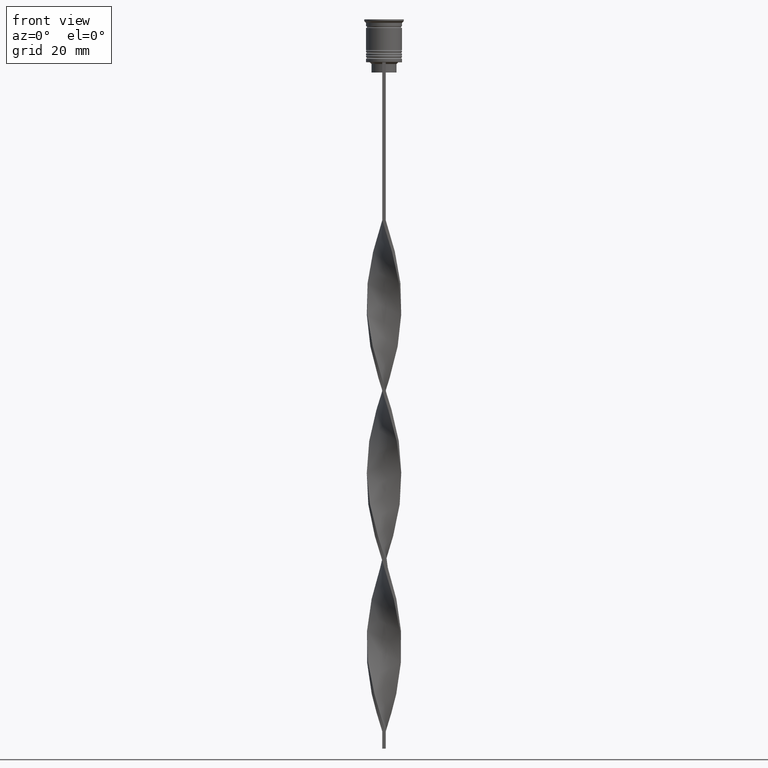
[diagram: clean part render]
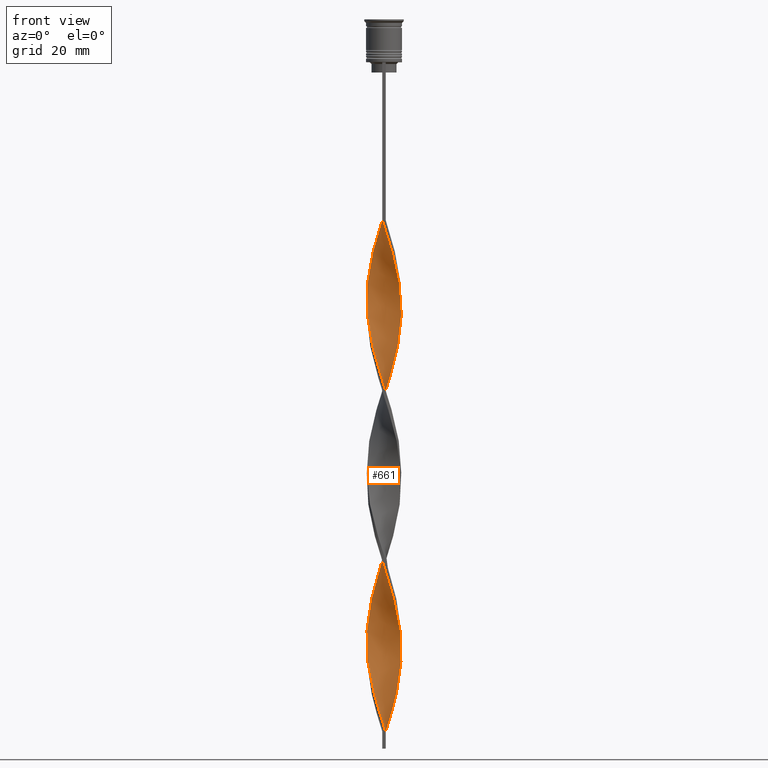
[diagram: same view with one face highlighted and labeled with its STEP entity id]
A machine part, front view. The second image highlights one B-rep face of the part: STEP entity #661.
In plain terms, the highlighted face is a freeform B-spline surface patch.
Its self-contained STEP definition (entity closure, byte-faithful):
#3 = CARTESIAN_POINT ( 'NONE',  ( 3.426799919866742705, -3.704571868705845095, -118.3921568627451109 ) ) ;
#10 = CARTESIAN_POINT ( 'NONE',  ( 2.687738844636429647, -4.271167325712944773, -115.4705882352941018 ) ) ;
#16 = CARTESIAN_POINT ( 'NONE',  ( 3.057269382251585288, 3.987869597209392936, -99.40196078431372939 ) ) ;
#30 = CARTESIAN_POINT ( 'NONE',  ( 1.339972216233587421, 4.842981980115355967, -151.9901960784313530 ) ) ;
#31 =( BOUNDED_SURFACE ( )  B_SPLINE_SURFACE ( 1, 2, ( 
 ( #3238, #3155, #3502, #2878, #2326, #1101, #1719, #856, #565, #295, #3763, #238, #816, #1762, #3743, #3483, #2033, #509, #2279, #1679, #2952, #1406, #2911, #588, #3213, #1122, #3786, #2934, #16, #275, #3523, #1448, #1184, #2636, #3805, #2345, #529, #1468, #2371, #3544, #3462, #1994, #3178, #1699, #2894, #2594, #257, #2304, #835, #2016, #3195, #1430, #2617, #3326, #647, #3010, #1522, #1221, #3273, #2711, #947, #3626, #2751, #366, #2075, #1489, #607, #1206, #2971, #2677, #126, #561, #2323, #2949, #2653, #1465, #2576, #2052, #3480, #832, #892, #3499, #3803, #3740, #1739, #1097, #2275, #2929, #466, #1363, #102, #1611, #2762, #731, #117, #2508, #3673, #1034, #3688, #462, #2463, #1631, #1338 ),
 ( #1053, #1941, #2312, #2565, #1687, #3774, #535, #3730, #1412, #841, #2020, #2839, #1357, #783, #2863, #1087, #3446, #801, #1470, #3597, #56, #1823, #277, #927, #1223, #2348, #3012, #949, #2091, #3311, #1840, #2059, #590, #1764, #609, #1187, #1492, #2077, #1783, #3254, #2331, #3, #2355, #1771, #3017, #2661, #377, #2718, #3262, #2740, #955, #2444, #3335, #2685, #1513, #1194, #2978, #3565, #2460, #400, #1569, #1279, #2352, #1473, #3747, #3771, #2287, #533, #1723, #1806, #2637, #3441, #1449, #2346, #3239, #1374, #367, #1257, #296, #3252, #1801, #2695, #1746, #2955, #1701, #2307, #2060, #3789, #879, #2936, #1721, #1103, #3485, #2619, #837, #2639, #591, #1765, #2349, #1682, #2282, #1111, #1023 ) ),
 .UNSPECIFIED., .F., .F., .F. ) 
 B_SPLINE_SURFACE_WITH_KNOTS ( ( 2, 2 ),
 ( 3, 2, 2, 2, 2, 2, 2, 2, 2, 2, 2, 2, 2, 2, 2, 2, 2, 2, 2, 2, 2, 2, 2, 2, 2, 2, 2, 2, 2, 2, 2, 2, 2, 2, 2, 2, 2, 2, 2, 2, 2, 2, 2, 2, 2, 2, 2, 2, 2, 2, 2, 3 ),
 ( 0.000000000000000000, 1.000000000000000000 ),
 ( 0.000000000000000000, 0.01470588235294117627, 0.02941176470588235253, 0.04411764705882353227, 0.05882352941176470507, 0.07352941176470588480, 0.08823529411764706454, 0.1029411764705882304, 0.1176470588235294101, 0.1323529411764705899, 0.1470588235294117696, 0.1617647058823529493, 0.1764705882352941291, 0.1911764705882352811, 0.2058823529411764608, 0.2205882352941176405, 0.2352941176470588203, 0.2500000000000000000, 0.2647058823529411797, 0.2794117647058823595, 0.2941176470588235392, 0.3088235294117647189, 0.3235294117647058987, 0.3382352941176470784, 0.3529411764705882582, 0.3676470588235294379, 0.3823529411764705621, 0.3970588235294117418, 0.4117647058823529216, 0.4264705882352941013, 0.4411764705882352811, 0.4558823529411764608, 0.4705882352941176405, 0.4852941176470588203, 0.5000000000000000000, 0.5147058823529411242, 0.5294117647058823595, 0.5441176470588234837, 0.5588235294117647189, 0.5735294117647058432, 0.5882352941176470784, 0.6029411764705882026, 0.6176470588235294379, 0.6323529411764705621, 0.6470588235294117974, 0.6617647058823529216, 0.6764705882352941568, 0.6911764705882352811, 0.7058823529411765163, 0.7205882352941176405, 0.7352941176470588758, 0.7500000000000000000 ),
 .UNSPECIFIED. ) 
 GEOMETRIC_REPRESENTATION_ITEM ( )  RATIONAL_B_SPLINE_SURFACE ( (
 ( 1.000000000000000000, 0.9957341762950344677, 1.000000000000000000, 0.9957341762950344677, 1.000000000000000000, 0.9957341762950344677, 1.000000000000000000, 0.9957341762950344677, 1.000000000000000000, 0.9957341762950344677, 1.000000000000000000, 0.9957341762950344677, 1.000000000000000000, 0.9957341762950344677, 1.000000000000000000, 0.9957341762950344677, 1.000000000000000000, 0.9957341762950344677, 1.000000000000000000, 0.9957341762950344677, 1.000000000000000000, 0.9957341762950344677, 1.000000000000000000, 0.9957341762950344677, 1.000000000000000000, 0.9957341762950344677, 1.000000000000000000, 0.9957341762950344677, 1.000000000000000000, 0.9957341762950344677, 1.000000000000000000, 0.9957341762950344677, 1.000000000000000000, 0.9957341762950344677, 1.000000000000000000, 0.9957341762950344677, 1.000000000000000000, 0.9957341762950344677, 1.000000000000000000, 0.9957341762950344677, 1.000000000000000000, 0.9957341762950344677, 1.000000000000000000, 0.9957341762950344677, 1.000000000000000000, 0.9957341762950344677, 1.000000000000000000, 0.9957341762950344677, 1.000000000000000000, 0.9957341762950344677, 1.000000000000000000, 0.9957341762950344677, 1.000000000000000000, 0.9957341762950344677, 1.000000000000000000, 0.9957341762950344677, 1.000000000000000000, 0.9957341762950344677, 1.000000000000000000, 0.9957341762950344677, 1.000000000000000000, 0.9957341762950344677, 1.000000000000000000, 0.9957341762950344677, 1.000000000000000000, 0.9957341762950344677, 1.000000000000000000, 0.9957341762950344677, 1.000000000000000000, 0.9957341762950344677, 1.000000000000000000, 0.9957341762950344677, 1.000000000000000000, 0.9957341762950344677, 1.000000000000000000, 0.9957341762950344677, 1.000000000000000000, 0.9957341762950344677, 1.000000000000000000, 0.9957341762950344677, 1.000000000000000000, 0.9957341762950344677, 1.000000000000000000, 0.9957341762950344677, 1.000000000000000000, 0.9957341762950344677, 1.000000000000000000, 0.9957341762950344677, 1.000000000000000000, 0.9957341762950344677, 1.000000000000000000, 0.9957341762950344677, 1.000000000000000000, 0.9957341762950344677, 1.000000000000000000, 0.9957341762950344677, 1.000000000000000000, 0.9957341762950344677, 1.000000000000000000, 0.9957341762950344677, 1.000000000000000000, 0.9957341762950344677, 1.000000000000000000),
 ( 1.000000000000000000, 0.9957341762950344677, 1.000000000000000000, 0.9957341762950344677, 1.000000000000000000, 0.9957341762950344677, 1.000000000000000000, 0.9957341762950344677, 1.000000000000000000, 0.9957341762950344677, 1.000000000000000000, 0.9957341762950344677, 1.000000000000000000, 0.9957341762950344677, 1.000000000000000000, 0.9957341762950344677, 1.000000000000000000, 0.9957341762950344677, 1.000000000000000000, 0.9957341762950344677, 1.000000000000000000, 0.9957341762950344677, 1.000000000000000000, 0.9957341762950344677, 1.000000000000000000, 0.9957341762950344677, 1.000000000000000000, 0.9957341762950344677, 1.000000000000000000, 0.9957341762950344677, 1.000000000000000000, 0.9957341762950344677, 1.000000000000000000, 0.9957341762950344677, 1.000000000000000000, 0.9957341762950344677, 1.000000000000000000, 0.9957341762950344677, 1.000000000000000000, 0.9957341762950344677, 1.000000000000000000, 0.9957341762950344677, 1.000000000000000000, 0.9957341762950344677, 1.000000000000000000, 0.9957341762950344677, 1.000000000000000000, 0.9957341762950344677, 1.000000000000000000, 0.9957341762950344677, 1.000000000000000000, 0.9957341762950344677, 1.000000000000000000, 0.9957341762950344677, 1.000000000000000000, 0.9957341762950344677, 1.000000000000000000, 0.9957341762950344677, 1.000000000000000000, 0.9957341762950344677, 1.000000000000000000, 0.9957341762950344677, 1.000000000000000000, 0.9957341762950344677, 1.000000000000000000, 0.9957341762950344677, 1.000000000000000000, 0.9957341762950344677, 1.000000000000000000, 0.9957341762950344677, 1.000000000000000000, 0.9957341762950344677, 1.000000000000000000, 0.9957341762950344677, 1.000000000000000000, 0.9957341762950344677, 1.000000000000000000, 0.9957341762950344677, 1.000000000000000000, 0.9957341762950344677, 1.000000000000000000, 0.9957341762950344677, 1.000000000000000000, 0.9957341762950344677, 1.000000000000000000, 0.9957341762950344677, 1.000000000000000000, 0.9957341762950344677, 1.000000000000000000, 0.9957341762950344677, 1.000000000000000000, 0.9957341762950344677, 1.000000000000000000, 0.9957341762950344677, 1.000000000000000000, 0.9957341762950344677, 1.000000000000000000, 0.9957341762950344677, 1.000000000000000000, 0.9957341762950344677, 1.000000000000000000, 0.9957341762950344677, 1.000000000000000000) ) ) 
 REPRESENTATION_ITEM ( '' )  SURFACE ( )  );
#50 = ORIENTED_EDGE ( 'NONE', *, *, #1525, .T. ) ;
#56 = CARTESIAN_POINT ( 'NONE',  ( -4.672296720828054362, -1.849227771946824417, -87.71568627450979250 ) ) ;
#60 = CARTESIAN_POINT ( 'NONE',  ( -2.207052246521971295, 4.514301760086747883, -116.9313725490195992 ) ) ;
#63 = B_SPLINE_CURVE_WITH_KNOTS ( 'NONE', 3,
 ( #2837, #2228, #838, #494 ),
 .UNSPECIFIED., .F., .F.,
 ( 4, 4 ),
 ( 0.000000000000000000, 1.000000000000000000 ),
 .UNSPECIFIED. ) ;
#78 = CARTESIAN_POINT ( 'NONE',  ( -5.028189627835276454, -0.4290914677958234114, -135.9215686274509665 ) ) ;
#98 = CARTESIAN_POINT ( 'NONE',  ( -2.998973759622455937, 4.031892407926573441, -119.8529411764705799 ) ) ;
#102 = CARTESIAN_POINT ( 'NONE',  ( 4.698685634663579691, 1.781110133205159318, -189.9705882352941160 ) ) ;
#115 = CARTESIAN_POINT ( 'NONE',  ( 5.024805061206823353, -0.03652529083100791024, -84.79411764705882604 ) ) ;
#117 = CARTESIAN_POINT ( 'NONE',  ( 3.737982676843115915, 3.358196764280015678, -195.8137254901960773 ) ) ;
#126 = CARTESIAN_POINT ( 'NONE',  ( 0.4272610392409006419, -5.006740257327792598, -160.7549019607842808 ) ) ;
#135 = CARTESIAN_POINT ( 'NONE',  ( 0.9633182312101482569, 4.953668176878984752, -106.7058823529411882 ) ) ;
#149 = VERTEX_POINT ( 'NONE', #1554 ) ;
#160 = CARTESIAN_POINT ( 'NONE',  ( -3.737982676843116359, 3.358196764280017454, -70.18627450980390847 ) ) ;
#177 = CARTESIAN_POINT ( 'NONE',  ( -4.533641475362164996, 2.216507476658134301, -74.56862745098038658 ) ) ;
#194 = CARTESIAN_POINT ( 'NONE',  ( -5.024805061206824242, -0.03652529083100704288, -81.87254901960783116 ) ) ;
#201 = CARTESIAN_POINT ( 'NONE',  ( -0.5000000000000000000, -4.999999999999999112, -58.50000000000000000 ) ) ;
#216 = CARTESIAN_POINT ( 'NONE',  ( -2.625363907848424105, -4.309788251477359999, -97.94117647058824616 ) ) ;
#223 = CARTESIAN_POINT ( 'NONE',  ( 4.932536701743520879, -0.9592088854640271611, -181.2058823529411598 ) ) ;
#238 = CARTESIAN_POINT ( 'NONE',  ( 4.004954025026647102, -3.070367026697014889, -74.56862745098038658 ) ) ;
#249 = CARTESIAN_POINT ( 'NONE',  ( -4.945959710900137196, 0.8874021287740044839, -178.2843137254901933 ) ) ;
#257 = CARTESIAN_POINT ( 'NONE',  ( -4.252947278887043048, 2.676273424560220882, -125.6960784313725412 ) ) ;
#268 = CARTESIAN_POINT ( 'NONE',  ( -4.672296720828054362, -1.849227771946824417, -187.0490196078431211 ) ) ;
#275 = CARTESIAN_POINT ( 'NONE',  ( 2.687738844636428759, 4.271167325712943885, -100.8627450980392126 ) ) ;
#277 = CARTESIAN_POINT ( 'NONE',  ( -4.252947278887043936, -2.676273424560222658, -90.63725490196078738 ) ) ;
#289 = CARTESIAN_POINT ( 'NONE',  ( -4.843652908908672394, -1.416275721470217963, -185.5882352941176237 ) ) ;
#291 = VERTEX_POINT ( 'NONE', #537 ) ;
#295 = CARTESIAN_POINT ( 'NONE',  ( 3.372583611396490877, -3.753996564375789102, -71.64705882352943433 ) ) ;
#296 = CARTESIAN_POINT ( 'NONE',  ( -4.291403454590826172, 2.614164568256163168, -172.4411764705882035 ) ) ;
#306 = CARTESIAN_POINT ( 'NONE',  ( -3.057269382251586176, 3.987869597209393824, -166.5980392156862706 ) ) ;
#329 = CARTESIAN_POINT ( 'NONE',  ( -4.932536701743522656, -0.9592088854640269391, -184.1274509803921546 ) ) ;
#356 = CARTESIAN_POINT ( 'NONE',  ( -3.057269382251587064, -3.987869597209391159, -149.0686274509803866 ) ) ;
#366 = CARTESIAN_POINT ( 'NONE',  ( -2.687738844636427871, -4.271167325712944773, -150.5294117647058840 ) ) ;
#367 = CARTESIAN_POINT ( 'NONE',  ( -3.737982676843116359, 3.358196764280017454, -169.5196078431372371 ) ) ;
#377 = CARTESIAN_POINT ( 'NONE',  ( 4.698685634663582356, -1.781110133205159318, -125.6960784313725412 ) ) ;
#378 = CARTESIAN_POINT ( 'NONE',  ( -2.272444445637942678, -4.481740313928202823, -151.9901960784313530 ) ) ;
#400 = CARTESIAN_POINT ( 'NONE',  ( 3.372583611396490433, 3.753996564375791323, -144.6862745098039227 ) ) ;
#401 = CARTESIAN_POINT ( 'NONE',  ( 4.932536701743520879, -0.9592088854640271611, -81.87254901960783116 ) ) ;
#419 = CARTESIAN_POINT ( 'NONE',  ( -0.4272610392408995317, 5.006740257327792598, -111.0882352941176379 ) ) ;
#437 = CARTESIAN_POINT ( 'NONE',  ( -1.857150046639457930, -4.692313302143461762, -153.4509803921568789 ) ) ;
#462 = CARTESIAN_POINT ( 'NONE',  ( 1.857150046639457264, 4.692313302143462650, -203.1176470588235361 ) ) ;
#466 = CARTESIAN_POINT ( 'NONE',  ( 4.945959710900135420, 0.8874021287740047059, -187.0490196078431211 ) ) ;
#493 = CARTESIAN_POINT ( 'NONE',  ( 4.533641475362163220, 2.216507476658134301, -191.4313725490196134 ) ) ;
#494 = CARTESIAN_POINT ( 'NONE',  ( 0.4999999999999993339, -5.000000000000000888, -207.5000000000000000 ) ) ;
#503 = CARTESIAN_POINT ( 'NONE',  ( -4.843652908908672394, -1.416275721470217963, -86.25490196078432348 ) ) ;
#509 = CARTESIAN_POINT ( 'NONE',  ( 5.021420494578371141, -0.5021420494578375804, -83.33333333333332860 ) ) ;
#529 = CARTESIAN_POINT ( 'NONE',  ( -0.4272610392408995317, 5.006740257327792598, -111.0882352941176379 ) ) ;
#531 = CARTESIAN_POINT ( 'NONE',  ( 4.500940532747436329, -2.282179822423430426, -176.8235294117647243 ) ) ;
#533 = CARTESIAN_POINT ( 'NONE',  ( -0.03668176878985122263, 5.046331823121017024, -156.3725490196078454 ) ) ;
#535 = CARTESIAN_POINT ( 'NONE',  ( -3.057269382251586176, 3.987869597209393824, -67.26470588235292780 ) ) ;
#537 = CARTESIAN_POINT ( 'NONE',  ( 0.5000000000000006661, 4.999999999999999112, -207.5000000000000000 ) ) ;
#543 = CARTESIAN_POINT ( 'NONE',  ( -0.9633182312101491451, 4.953668176878985641, -159.2941176470588118 ) ) ;
#554 = CARTESIAN_POINT ( 'NONE',  ( 3.372583611396490433, -3.753996564375789102, -71.64705882352942012 ) ) ;
#556 = CARTESIAN_POINT ( 'NONE',  ( -0.8912038472716539150, -4.967148691534573501, -203.1176470588235361 ) ) ;
#561 = CARTESIAN_POINT ( 'NONE',  ( 0.8912038472716523607, -4.967148691534572613, -162.2156862745098351 ) ) ;
#565 = CARTESIAN_POINT ( 'NONE',  ( 2.998973759622455937, -4.031892407926573441, -70.18627450980390847 ) ) ;
#581 = CARTESIAN_POINT ( 'NONE',  ( -5.021420494578373805, -0.5021420494578369143, -182.6666666666666856 ) ) ;
#585 = EDGE_CURVE ( 'NONE', #149, #3172, #723, .T. ) ;
#588 = CARTESIAN_POINT ( 'NONE',  ( 4.533641475362163220, 2.216507476658134301, -92.09803921568628482 ) ) ;
#590 = CARTESIAN_POINT ( 'NONE',  ( -0.4272610392409010860, -5.006740257327794374, -105.2450980392156765 ) ) ;
#591 = CARTESIAN_POINT ( 'NONE',  ( -2.207052246521971739, -4.514301760086749660, -198.7352941176470722 ) ) ;
#602 = CARTESIAN_POINT ( 'NONE',  ( -2.272444445637943122, 4.481740313928203712, -163.6764705882352757 ) ) ;
#607 = CARTESIAN_POINT ( 'NONE',  ( -1.410234138924801206, -4.822990739511222813, -154.9117647058823479 ) ) ;
#609 = CARTESIAN_POINT ( 'NONE',  ( 0.4999999999999993339, -5.000000000000000888, -108.1666666666666572 ) ) ;
#621 = CARTESIAN_POINT ( 'NONE',  ( -1.410234138924802982, 4.822990739511224589, -160.7549019607842808 ) ) ;
#647 = CARTESIAN_POINT ( 'NONE',  ( -4.945959710900135420, -0.8874021287740040398, -137.3823529411764639 ) ) ;
#653 = CARTESIAN_POINT ( 'NONE',  ( 1.339972216233586311, -4.842981980115355078, -163.6764705882352757 ) ) ;
#661 = ADVANCED_FACE ( 'NONE', ( #1744 ), #31, .T. ) ;
#668 = CARTESIAN_POINT ( 'NONE',  ( -4.945959710900135420, -0.8874021287740040398, -137.3823529411764639 ) ) ;
#688 = CARTESIAN_POINT ( 'NONE',  ( 3.372583611396490433, -3.753996564375789102, -170.9803921568627629 ) ) ;
#710 = CARTESIAN_POINT ( 'NONE',  ( 4.533641475362163220, 2.216507476658134301, -92.09803921568628482 ) ) ;
#721 = ORIENTED_EDGE ( 'NONE', *, *, #585, .T. ) ;
#723 = LINE ( 'NONE', #201, #923 ) ;
#727 = CARTESIAN_POINT ( 'NONE',  ( -3.737982676843114582, -3.358196764280017010, -146.1470588235294201 ) ) ;
#731 = CARTESIAN_POINT ( 'NONE',  ( 4.049165433819487347, 3.011821659854191147, -194.3529411764705799 ) ) ;
#736 = CARTESIAN_POINT ( 'NONE',  ( -3.426799919866744482, 3.704571868705844206, -68.72549019607842524 ) ) ;
#743 = CARTESIAN_POINT ( 'NONE',  ( 4.945959710900135420, 0.8874021287740047059, -187.0490196078431211 ) ) ;
#755 = CARTESIAN_POINT ( 'NONE',  ( -2.207052246521971739, -4.514301760086749660, -99.40196078431372939 ) ) ;
#772 = CARTESIAN_POINT ( 'NONE',  ( -2.687738844636429647, 4.271167325712944773, -65.80392156862745878 ) ) ;
#780 = CARTESIAN_POINT ( 'NONE',  ( 0.9633182312101482569, 4.953668176878984752, -206.0392156862745026 ) ) ;
#783 = CARTESIAN_POINT ( 'NONE',  ( -4.863729793965000603, 1.345712789752187666, -77.49019607843138147 ) ) ;
#796 = CARTESIAN_POINT ( 'NONE',  ( 4.698685634663579691, 1.781110133205159318, -189.9705882352941160 ) ) ;
#801 = CARTESIAN_POINT ( 'NONE',  ( -5.021420494578372917, -0.5021420494578369143, -83.33333333333332860 ) ) ;
#809 = CARTESIAN_POINT ( 'NONE',  ( -1.857150046639456598, 4.692313302143463538, -62.88235294117647101 ) ) ;
#816 = CARTESIAN_POINT ( 'NONE',  ( 4.252947278887042160, -2.676273424560222214, -76.02941176470586981 ) ) ;
#829 = CARTESIAN_POINT ( 'NONE',  ( -3.737982676843116359, 3.358196764280017454, -169.5196078431372371 ) ) ;
#832 = CARTESIAN_POINT ( 'NONE',  ( 4.004954025026647102, -3.070367026697014889, -173.9019607843137294 ) ) ;
#835 = CARTESIAN_POINT ( 'NONE',  ( -4.672296720828052585, 1.849227771946825083, -128.6176470588235361 ) ) ;
#837 = CARTESIAN_POINT ( 'NONE',  ( -2.998973759622457713, -4.031892407926574329, -195.8137254901960773 ) ) ;
#838 = CARTESIAN_POINT ( 'NONE',  ( 0.4999999999999997780, -1.666666666666667851, -207.5000000000000000 ) ) ;
#841 = CARTESIAN_POINT ( 'NONE',  ( -4.049165433819489124, 3.011821659854192479, -71.64705882352943433 ) ) ;
#849 = CARTESIAN_POINT ( 'NONE',  ( -4.252947278887043936, -2.676273424560222658, -189.9705882352941160 ) ) ;
#856 = CARTESIAN_POINT ( 'NONE',  ( 2.625363907848422773, -4.309788251477359111, -68.72549019607842524 ) ) ;
#869 = CARTESIAN_POINT ( 'NONE',  ( 4.672296720828054362, 1.849227771946823751, -137.3823529411764639 ) ) ;
#879 = CARTESIAN_POINT ( 'NONE',  ( -4.672296720828054362, -1.849227771946824417, -187.0490196078431211 ) ) ;
#887 = CARTESIAN_POINT ( 'NONE',  ( 5.024805061206825130, 0.03652529083100763962, -131.5392156862745310 ) ) ;
#892 = CARTESIAN_POINT ( 'NONE',  ( 4.252947278887042160, -2.676273424560222214, -175.3627450980391984 ) ) ;
#902 = CARTESIAN_POINT ( 'NONE',  ( 5.028189627835277342, -0.4290914677958209134, -130.0784313725490335 ) ) ;
#909 = EDGE_CURVE ( 'NONE', #291, #3098, #63, .T. ) ;
#923 = VECTOR ( 'NONE', #1602, 1000.000000000000000 ) ;
#927 = CARTESIAN_POINT ( 'NONE',  ( -4.004954025026648878, -3.070367026697016666, -92.09803921568628482 ) ) ;
#934 = CARTESIAN_POINT ( 'NONE',  ( 0.5000000000000006661, 4.999999999999999112, -108.1666666666666572 ) ) ;
#947 = CARTESIAN_POINT ( 'NONE',  ( -3.737982676843114582, -3.358196764280017010, -146.1470588235294201 ) ) ;
#949 = CARTESIAN_POINT ( 'NONE',  ( -2.625363907848424105, -4.309788251477359999, -97.94117647058824616 ) ) ;
#955 = CARTESIAN_POINT ( 'NONE',  ( 5.024805061206825130, 0.03652529083100763962, -131.5392156862745310 ) ) ;
#956 = CARTESIAN_POINT ( 'NONE',  ( -2.625363907848421885, 4.309788251477359111, -118.3921568627451109 ) ) ;
#973 = CARTESIAN_POINT ( 'NONE',  ( 2.998973759622455937, -4.031892407926573441, -169.5196078431372371 ) ) ;
#993 = CARTESIAN_POINT ( 'NONE',  ( -4.932536701743520879, 0.9592088854640268281, -131.5392156862745310 ) ) ;
#1014 = CARTESIAN_POINT ( 'NONE',  ( -5.024805061206823353, 0.03652529083100964497, -134.4607843137254974 ) ) ;
#1023 = CARTESIAN_POINT ( 'NONE',  ( 0.4999999999999993339, -5.000000000000000888, -207.5000000000000000 ) ) ;
#1031 = CARTESIAN_POINT ( 'NONE',  ( 5.021420494578372029, -0.5021420494578375804, -182.6666666666666856 ) ) ;
#1034 = CARTESIAN_POINT ( 'NONE',  ( 2.687738844636428759, 4.271167325712943885, -200.1960784313725981 ) ) ;
#1047 = CARTESIAN_POINT ( 'NONE',  ( 4.863729793964998827, 1.345712789752186556, -188.5098039215686185 ) ) ;
#1053 = CARTESIAN_POINT ( 'NONE',  ( -0.5000000000000000000, 5.000000000000000888, -58.50000000000000000 ) ) ;
#1077 = CARTESIAN_POINT ( 'NONE',  ( -5.021420494578373805, -0.5021420494578369143, -83.33333333333332860 ) ) ;
#1087 = CARTESIAN_POINT ( 'NONE',  ( -5.028189627835278230, 0.4290914677958227452, -80.41176470588234793 ) ) ;
#1093 = CARTESIAN_POINT ( 'NONE',  ( 0.9633182312101494782, -4.953668176878985641, -109.6274509803921404 ) ) ;
#1097 = CARTESIAN_POINT ( 'NONE',  ( 5.021420494578371141, -0.5021420494578375804, -182.6666666666666572 ) ) ;
#1101 = CARTESIAN_POINT ( 'NONE',  ( 1.788740585195520927, -4.718815268696137544, -65.80392156862747299 ) ) ;
#1103 = CARTESIAN_POINT ( 'NONE',  ( -4.004954025026648878, -3.070367026697016666, -191.4313725490196134 ) ) ;
#1106 = CARTESIAN_POINT ( 'NONE',  ( -0.5000000000000000000, 5.000000000000000888, -58.50000000000000000 ) ) ;
#1111 = CARTESIAN_POINT ( 'NONE',  ( 0.03668176878985188183, -5.046331823121017024, -206.0392156862745026 ) ) ;
#1117 = CARTESIAN_POINT ( 'NONE',  ( -4.863729793965000603, 1.345712789752187666, -176.8235294117647243 ) ) ;
#1122 = CARTESIAN_POINT ( 'NONE',  ( 4.049165433819487347, 3.011821659854191147, -95.01960784313725128 ) ) ;
#1135 = CARTESIAN_POINT ( 'NONE',  ( 0.8912038472716545812, 4.967148691534573501, -153.4509803921568789 ) ) ;
#1153 = CARTESIAN_POINT ( 'NONE',  ( 4.049165433819489124, -3.011821659854191591, -121.3137254901960773 ) ) ;
#1177 = CARTESIAN_POINT ( 'NONE',  ( -3.426799919866744482, 3.704571868705844206, -168.0588235294117680 ) ) ;
#1184 = CARTESIAN_POINT ( 'NONE',  ( 1.410234138924802538, 4.822990739511222813, -105.2450980392156765 ) ) ;
#1187 = CARTESIAN_POINT ( 'NONE',  ( 0.9633182312101494782, -4.953668176878985641, -109.6274509803921546 ) ) ;
#1194 = CARTESIAN_POINT ( 'NONE',  ( 4.500940532747439882, 2.282179822423429094, -138.8431372549019045 ) ) ;
#1199 = CARTESIAN_POINT ( 'NONE',  ( 3.057269382251586620, -3.987869597209393824, -116.9313725490195992 ) ) ;
#1206 = CARTESIAN_POINT ( 'NONE',  ( -0.9633182312101489231, -4.953668176878984752, -156.3725490196078454 ) ) ;
#1221 = CARTESIAN_POINT ( 'NONE',  ( -4.533641475362163220, -2.216507476658133413, -141.7647058823529562 ) ) ;
#1223 = CARTESIAN_POINT ( 'NONE',  ( -3.688768818211570988, -3.412181795536401552, -93.55882352941176805 ) ) ;
#1228 = CARTESIAN_POINT ( 'NONE',  ( -4.004954025026647102, 3.070367026697016222, -124.2352941176470580 ) ) ;
#1246 = CARTESIAN_POINT ( 'NONE',  ( 3.737982676843115915, 3.358196764280015678, -96.48039215686274872 ) ) ;
#1257 = CARTESIAN_POINT ( 'NONE',  ( -4.049165433819489124, 3.011821659854192479, -170.9803921568627629 ) ) ;
#1263 = CARTESIAN_POINT ( 'NONE',  ( -5.021420494578372029, 0.5021420494578382465, -133.0000000000000000 ) ) ;
#1279 = CARTESIAN_POINT ( 'NONE',  ( 2.625363907848424549, 4.309788251477359999, -147.6078431372548891 ) ) ;
#1280 = CARTESIAN_POINT ( 'NONE',  ( -3.372583611396490877, 3.753996564375788658, -121.3137254901960773 ) ) ;
#1301 = CARTESIAN_POINT ( 'NONE',  ( 4.672296720828052585, -1.849227771946823307, -78.95098039215686470 ) ) ;
#1327 = CARTESIAN_POINT ( 'NONE',  ( -2.998973759622457713, -4.031892407926574329, -96.48039215686274872 ) ) ;
#1338 = CARTESIAN_POINT ( 'NONE',  ( 0.5000000000000006661, 4.999999999999999112, -207.5000000000000000 ) ) ;
#1344 = CARTESIAN_POINT ( 'NONE',  ( -3.688768818211570988, -3.412181795536401552, -93.55882352941176805 ) ) ;
#1351 = CARTESIAN_POINT ( 'NONE',  ( 4.291403454590825284, 2.614164568256161392, -192.8921568627450824 ) ) ;
#1357 = CARTESIAN_POINT ( 'NONE',  ( -4.698685634663581467, 1.781110133205160651, -76.02941176470586981 ) ) ;
#1363 = CARTESIAN_POINT ( 'NONE',  ( 4.863729793964998827, 1.345712789752186556, -188.5098039215686185 ) ) ;
#1374 = CARTESIAN_POINT ( 'NONE',  ( -3.426799919866744037, 3.704571868705844206, -168.0588235294117680 ) ) ;
#1393 = CARTESIAN_POINT ( 'NONE',  ( 4.049165433819487347, 3.011821659854190703, -194.3529411764705799 ) ) ;
#1406 = CARTESIAN_POINT ( 'NONE',  ( 4.863729793964998827, 1.345712789752186556, -89.17647058823527573 ) ) ;
#1412 = CARTESIAN_POINT ( 'NONE',  ( -3.737982676843116359, 3.358196764280017454, -70.18627450980390847 ) ) ;
#1422 = CARTESIAN_POINT ( 'NONE',  ( -2.625363907848424105, -4.309788251477359999, -197.2745098039215463 ) ) ;
#1430 = CARTESIAN_POINT ( 'NONE',  ( -5.021420494578371141, 0.5021420494578382465, -133.0000000000000000 ) ) ;
#1440 = CARTESIAN_POINT ( 'NONE',  ( 4.004954025026647102, -3.070367026697014889, -74.56862745098038658 ) ) ;
#1442 = CARTESIAN_POINT ( 'NONE',  ( 3.426799919866743149, -3.704571868705845095, -118.3921568627451109 ) ) ;
#1448 = CARTESIAN_POINT ( 'NONE',  ( 1.857150046639457264, 4.692313302143462650, -103.7843137254901933 ) ) ;
#1449 = CARTESIAN_POINT ( 'NONE',  ( -2.272444445637943122, 4.481740313928203712, -163.6764705882352757 ) ) ;
#1461 = CARTESIAN_POINT ( 'NONE',  ( -2.687738844636429647, 4.271167325712944773, -165.1372549019608016 ) ) ;
#1465 = CARTESIAN_POINT ( 'NONE',  ( 2.625363907848422773, -4.309788251477359111, -168.0588235294117680 ) ) ;
#1468 = CARTESIAN_POINT ( 'NONE',  ( -0.8912038472716523607, 4.967148691534572613, -112.5490196078431495 ) ) ;
#1470 = CARTESIAN_POINT ( 'NONE',  ( -4.932536701743522656, -0.9592088854640269391, -84.79411764705882604 ) ) ;
#1473 = CARTESIAN_POINT ( 'NONE',  ( 1.788740585195520927, 4.718815268696140208, -150.5294117647058840 ) ) ;
#1483 = CARTESIAN_POINT ( 'NONE',  ( 4.945959710900137196, -0.8874021287740062602, -128.6176470588235361 ) ) ;
#1489 = CARTESIAN_POINT ( 'NONE',  ( -1.857150046639457930, -4.692313302143461762, -153.4509803921568789 ) ) ;
#1492 = CARTESIAN_POINT ( 'NONE',  ( 1.410234138924801650, -4.822990739511224589, -111.0882352941176379 ) ) ;
#1503 = CARTESIAN_POINT ( 'NONE',  ( -0.5000000000000000000, 5.000000000000000888, -157.8333333333333144 ) ) ;
#1513 = CARTESIAN_POINT ( 'NONE',  ( 4.672296720828054362, 1.849227771946823751, -137.3823529411764639 ) ) ;
#1522 = CARTESIAN_POINT ( 'NONE',  ( -4.698685634663579691, -1.781110133205161095, -140.3039215686274588 ) ) ;
#1525 = EDGE_CURVE ( 'NONE', #3172, #3098, #3225, .T. ) ;
#1528 = CARTESIAN_POINT ( 'NONE',  ( 0.4272610392409006419, -5.006740257327792598, -160.7549019607842808 ) ) ;
#1549 = CARTESIAN_POINT ( 'NONE',  ( 3.057269382251585288, 3.987869597209392936, -99.40196078431372939 ) ) ;
#1554 = CARTESIAN_POINT ( 'NONE',  ( -0.5000000000000000000, -4.999999999999999112, -58.50000000000000000 ) ) ;
#1569 = CARTESIAN_POINT ( 'NONE',  ( 2.998973759622456825, 4.031892407926575217, -146.1470588235294201 ) ) ;
#1571 = CARTESIAN_POINT ( 'NONE',  ( -4.500940532747436329, 2.282179822423429982, -127.1568627450980244 ) ) ;
#1587 = CARTESIAN_POINT ( 'NONE',  ( -4.843652908908671506, 1.416275721470215743, -130.0784313725490335 ) ) ;
#1602 = DIRECTION ( 'NONE',  ( 0.000000000000000000, 1.000000000000000000, 0.000000000000000000 ) ) ;
#1606 = CARTESIAN_POINT ( 'NONE',  ( 4.291403454590825284, 2.614164568256161392, -93.55882352941176805 ) ) ;
#1611 = CARTESIAN_POINT ( 'NONE',  ( 4.533641475362163220, 2.216507476658134301, -191.4313725490196134 ) ) ;
#1619 = CARTESIAN_POINT ( 'NONE',  ( -4.252947278887043936, -2.676273424560222658, -90.63725490196078738 ) ) ;
#1628 = CARTESIAN_POINT ( 'NONE',  ( 3.688768818211569211, -3.412181795536401108, -172.4411764705882035 ) ) ;
#1631 = CARTESIAN_POINT ( 'NONE',  ( 0.9633182312101483680, 4.953668176878984752, -206.0392156862745026 ) ) ;
#1635 = CARTESIAN_POINT ( 'NONE',  ( -0.9633182312101491451, 4.953668176878985641, -59.96078431372549034 ) ) ;
#1650 = CARTESIAN_POINT ( 'NONE',  ( 0.03668176878985187489, -5.046331823121017024, -106.7058823529411882 ) ) ;
#1673 = CARTESIAN_POINT ( 'NONE',  ( -4.500940532747438105, -2.282179822423430871, -89.17647058823528994 ) ) ;
#1679 = CARTESIAN_POINT ( 'NONE',  ( 5.028189627835276454, 0.4290914677958227452, -86.25490196078432348 ) ) ;
#1682 = CARTESIAN_POINT ( 'NONE',  ( -0.8912038472716539150, -4.967148691534573501, -203.1176470588235361 ) ) ;
#1687 = CARTESIAN_POINT ( 'NONE',  ( -2.272444445637943122, 4.481740313928203712, -64.34313725490196134 ) ) ;
#1694 = CARTESIAN_POINT ( 'NONE',  ( -4.932536701743522656, -0.9592088854640269391, -84.79411764705882604 ) ) ;
#1699 = CARTESIAN_POINT ( 'NONE',  ( -3.372583611396490877, 3.753996564375788658, -121.3137254901960631 ) ) ;
#1701 = CARTESIAN_POINT ( 'NONE',  ( -5.024805061206824242, -0.03652529083100704288, -181.2058823529411598 ) ) ;
#1714 = CARTESIAN_POINT ( 'NONE',  ( -4.698685634663581467, 1.781110133205160651, -175.3627450980391984 ) ) ;
#1719 = CARTESIAN_POINT ( 'NONE',  ( 2.207052246521970851, -4.514301760086748772, -67.26470588235292780 ) ) ;
#1721 = CARTESIAN_POINT ( 'NONE',  ( -4.252947278887043936, -2.676273424560222658, -189.9705882352941160 ) ) ;
#1723 = CARTESIAN_POINT ( 'NONE',  ( -0.5000000000000000000, 5.000000000000000888, -157.8333333333333144 ) ) ;
#1731 = CARTESIAN_POINT ( 'NONE',  ( 2.207052246521970851, -4.514301760086748772, -67.26470588235292780 ) ) ;
#1733 = CARTESIAN_POINT ( 'NONE',  ( 4.252947278887043048, 2.676273424560224434, -140.3039215686274588 ) ) ;
#1739 = CARTESIAN_POINT ( 'NONE',  ( 4.932536701743520879, -0.9592088854640271611, -181.2058823529411598 ) ) ;
#1744 = FACE_OUTER_BOUND ( 'NONE', #3474, .T. ) ;
#1746 = CARTESIAN_POINT ( 'NONE',  ( -4.945959710900137196, 0.8874021287740044839, -178.2843137254901933 ) ) ;
#1755 = CARTESIAN_POINT ( 'NONE',  ( -0.03668176878985122263, -5.046331823121014359, -59.96078431372549034 ) ) ;
#1756 = CARTESIAN_POINT ( 'NONE',  ( -3.688768818211570988, -3.412181795536401552, -192.8921568627450824 ) ) ;
#1762 = CARTESIAN_POINT ( 'NONE',  ( 4.500940532747437217, -2.282179822423430426, -77.49019607843138147 ) ) ;
#1764 = CARTESIAN_POINT ( 'NONE',  ( 0.03668176878985188183, -5.046331823121017024, -106.7058823529412024 ) ) ;
#1765 = CARTESIAN_POINT ( 'NONE',  ( -1.788740585195522481, -4.718815268696138432, -200.1960784313725981 ) ) ;
#1770 = CARTESIAN_POINT ( 'NONE',  ( 0.4999999999999993339, -5.000000000000000888, -207.5000000000000000 ) ) ;
#1771 = CARTESIAN_POINT ( 'NONE',  ( 4.049165433819489124, -3.011821659854192035, -121.3137254901960631 ) ) ;
#1776 = CARTESIAN_POINT ( 'NONE',  ( 2.272444445637944010, -4.481740313928203712, -114.0098039215686185 ) ) ;
#1783 = CARTESIAN_POINT ( 'NONE',  ( 2.272444445637944010, -4.481740313928203712, -114.0098039215686185 ) ) ;
#1795 = CARTESIAN_POINT ( 'NONE',  ( -4.533641475362164996, 2.216507476658134301, -173.9019607843137294 ) ) ;
#1801 = CARTESIAN_POINT ( 'NONE',  ( -4.698685634663581467, 1.781110133205160651, -175.3627450980391984 ) ) ;
#1806 = CARTESIAN_POINT ( 'NONE',  ( -0.9633182312101491451, 4.953668176878985641, -159.2941176470588118 ) ) ;
#1823 = CARTESIAN_POINT ( 'NONE',  ( -4.500940532747438994, -2.282179822423430871, -89.17647058823527573 ) ) ;
#1827 = CARTESIAN_POINT ( 'NONE',  ( -4.672296720828052585, 1.849227771946825083, -128.6176470588235361 ) ) ;
#1840 = CARTESIAN_POINT ( 'NONE',  ( -1.339972216233586977, -4.842981980115355967, -102.3235294117646959 ) ) ;
#1845 = CARTESIAN_POINT ( 'NONE',  ( 1.857150046639457264, 4.692313302143462650, -103.7843137254901791 ) ) ;
#1865 = CARTESIAN_POINT ( 'NONE',  ( -3.688768818211568323, 3.412181795536401552, -122.7745098039215605 ) ) ;
#1871 = CARTESIAN_POINT ( 'NONE',  ( 0.4999999999999993339, -5.000000000000000888, -207.5000000000000000 ) ) ;
#1887 = CARTESIAN_POINT ( 'NONE',  ( 5.021420494578372029, -0.5021420494578375804, -83.33333333333332860 ) ) ;
#1903 = CARTESIAN_POINT ( 'NONE',  ( -3.426799919866744037, -3.704571868705841986, -147.6078431372548891 ) ) ;
#1912 = CARTESIAN_POINT ( 'NONE',  ( -4.049165433819489124, 3.011821659854192035, -71.64705882352942012 ) ) ;
#1921 = CARTESIAN_POINT ( 'NONE',  ( 5.028189627835276454, 0.4290914677958227452, -185.5882352941176237 ) ) ;
#1941 = CARTESIAN_POINT ( 'NONE',  ( -0.9633182312101491451, 4.953668176878985641, -59.96078431372549744 ) ) ;
#1947 = CARTESIAN_POINT ( 'NONE',  ( -0.8912038472716539150, -4.967148691534573501, -103.7843137254901791 ) ) ;
#1966 = CARTESIAN_POINT ( 'NONE',  ( -4.863729793965000603, 1.345712789752187666, -77.49019607843136725 ) ) ;
#1975 = CARTESIAN_POINT ( 'NONE',  ( 2.687738844636429203, 4.271167325712942997, -200.1960784313725696 ) ) ;
#1987 = CARTESIAN_POINT ( 'NONE',  ( -4.291403454590826172, 2.614164568256163168, -73.10784313725488914 ) ) ;
#1994 = CARTESIAN_POINT ( 'NONE',  ( -2.625363907848421885, 4.309788251477359111, -118.3921568627451109 ) ) ;
#2011 = CARTESIAN_POINT ( 'NONE',  ( 4.698685634663582356, -1.781110133205159318, -125.6960784313725412 ) ) ;
#2016 = CARTESIAN_POINT ( 'NONE',  ( -4.843652908908671506, 1.416275721470215743, -130.0784313725490335 ) ) ;
#2020 = CARTESIAN_POINT ( 'NONE',  ( -4.291403454590826172, 2.614164568256163168, -73.10784313725488914 ) ) ;
#2025 = CARTESIAN_POINT ( 'NONE',  ( 1.788740585195520927, -4.718815268696137544, -65.80392156862745878 ) ) ;
#2027 = CARTESIAN_POINT ( 'NONE',  ( -2.207052246521971739, -4.514301760086749660, -198.7352941176470722 ) ) ;
#2033 = CARTESIAN_POINT ( 'NONE',  ( 4.932536701743520879, -0.9592088854640271611, -81.87254901960783116 ) ) ;
#2046 = CARTESIAN_POINT ( 'NONE',  ( 1.788740585195520927, 4.718815268696140208, -150.5294117647058840 ) ) ;
#2052 = CARTESIAN_POINT ( 'NONE',  ( 3.372583611396490877, -3.753996564375789102, -170.9803921568627629 ) ) ;
#2059 = CARTESIAN_POINT ( 'NONE',  ( -0.8912038472716539150, -4.967148691534573501, -103.7843137254901933 ) ) ;
#2060 = CARTESIAN_POINT ( 'NONE',  ( -4.932536701743522656, -0.9592088854640269391, -184.1274509803921546 ) ) ;
#2067 = CARTESIAN_POINT ( 'NONE',  ( 2.625363907848422773, -4.309788251477359111, -68.72549019607842524 ) ) ;
#2068 = CARTESIAN_POINT ( 'NONE',  ( -5.024805061206824242, -0.03652529083100704288, -181.2058823529411598 ) ) ;
#2075 = CARTESIAN_POINT ( 'NONE',  ( -2.272444445637942678, -4.481740313928202823, -151.9901960784313530 ) ) ;
#2077 = CARTESIAN_POINT ( 'NONE',  ( 1.857150046639456598, -4.692313302143463538, -112.5490196078431495 ) ) ;
#2085 = CARTESIAN_POINT ( 'NONE',  ( 4.843652908908672394, 1.416275721470218629, -135.9215686274509665 ) ) ;
#2091 = CARTESIAN_POINT ( 'NONE',  ( -2.207052246521971739, -4.514301760086749660, -99.40196078431372939 ) ) ;
#2117 = CARTESIAN_POINT ( 'NONE',  ( -0.5000000000000000000, -4.999999999999999112, -157.8333333333333144 ) ) ;
#2134 = CARTESIAN_POINT ( 'NONE',  ( -4.291403454590826172, -2.614164568256160948, -143.2254901960784537 ) ) ;
#2151 = CARTESIAN_POINT ( 'NONE',  ( 4.863729793964998827, 1.345712789752186556, -89.17647058823528994 ) ) ;
#2175 = CARTESIAN_POINT ( 'NONE',  ( -4.863729793964999715, -1.345712789752185001, -138.8431372549019329 ) ) ;
#2195 = CARTESIAN_POINT ( 'NONE',  ( -4.049165433819486459, -3.011821659854192479, -144.6862745098039227 ) ) ;
#2209 = CARTESIAN_POINT ( 'NONE',  ( 3.057269382251585288, 3.987869597209392936, -198.7352941176470722 ) ) ;
#2226 = CARTESIAN_POINT ( 'NONE',  ( 2.272444445637942234, 4.481740313928202823, -201.6568627450980387 ) ) ;
#2228 = CARTESIAN_POINT ( 'NONE',  ( 0.5000000000000002220, 1.666666666666666075, -207.5000000000000000 ) ) ;
#2246 = CARTESIAN_POINT ( 'NONE',  ( 4.252947278887042160, -2.676273424560222214, -175.3627450980391984 ) ) ;
#2256 = CARTESIAN_POINT ( 'NONE',  ( 0.4999999999999993339, -5.000000000000000888, -108.1666666666666572 ) ) ;
#2260 = ORIENTED_EDGE ( 'NONE', *, *, #909, .F. ) ;
#2264 = CARTESIAN_POINT ( 'NONE',  ( 4.004954025026647102, -3.070367026697014889, -173.9019607843137294 ) ) ;
#2272 = CARTESIAN_POINT ( 'NONE',  ( 1.410234138924801650, -4.822990739511224589, -111.0882352941176379 ) ) ;
#2275 = CARTESIAN_POINT ( 'NONE',  ( 5.024805061206823353, -0.03652529083100791024, -184.1274509803921546 ) ) ;
#2279 = CARTESIAN_POINT ( 'NONE',  ( 5.024805061206823353, -0.03652529083100791024, -84.79411764705882604 ) ) ;
#2282 = CARTESIAN_POINT ( 'NONE',  ( -0.4272610392409010860, -5.006740257327794374, -204.5784313725490335 ) ) ;
#2283 = CARTESIAN_POINT ( 'NONE',  ( 3.737982676843115915, 3.358196764280015678, -195.8137254901960773 ) ) ;
#2287 = CARTESIAN_POINT ( 'NONE',  ( 0.4272610392408995317, 5.006740257327794374, -154.9117647058823479 ) ) ;
#2298 = CARTESIAN_POINT ( 'NONE',  ( -4.500940532747438105, -2.282179822423430871, -188.5098039215686185 ) ) ;
#2304 = CARTESIAN_POINT ( 'NONE',  ( -4.500940532747437217, 2.282179822423429982, -127.1568627450980102 ) ) ;
#2307 = CARTESIAN_POINT ( 'NONE',  ( -5.021420494578372917, -0.5021420494578369143, -182.6666666666666572 ) ) ;
#2312 = CARTESIAN_POINT ( 'NONE',  ( -1.410234138924802982, 4.822990739511224589, -61.42156862745097357 ) ) ;
#2319 = CARTESIAN_POINT ( 'NONE',  ( 4.863729793965000603, -1.345712789752187444, -127.1568627450980244 ) ) ;
#2323 = CARTESIAN_POINT ( 'NONE',  ( 1.339972216233586311, -4.842981980115355078, -163.6764705882352757 ) ) ;
#2326 = CARTESIAN_POINT ( 'NONE',  ( 1.339972216233586311, -4.842981980115355078, -64.34313725490196134 ) ) ;
#2331 = CARTESIAN_POINT ( 'NONE',  ( 3.057269382251586620, -3.987869597209393824, -116.9313725490195992 ) ) ;
#2339 = CARTESIAN_POINT ( 'NONE',  ( 4.291403454590826172, -2.614164568256163612, -122.7745098039215605 ) ) ;
#2345 = CARTESIAN_POINT ( 'NONE',  ( 0.03668176878985084099, 5.046331823121014359, -109.6274509803921546 ) ) ;
#2346 = CARTESIAN_POINT ( 'NONE',  ( -2.687738844636429203, 4.271167325712945662, -165.1372549019608016 ) ) ;
#2348 = CARTESIAN_POINT ( 'NONE',  ( -3.372583611396491321, -3.753996564375790879, -95.01960784313725128 ) ) ;
#2349 = CARTESIAN_POINT ( 'NONE',  ( -1.339972216233586977, -4.842981980115355967, -201.6568627450980387 ) ) ;
#2352 = CARTESIAN_POINT ( 'NONE',  ( 2.207052246521974403, 4.514301760086747883, -149.0686274509803866 ) ) ;
#2355 = CARTESIAN_POINT ( 'NONE',  ( 3.737982676843116359, -3.358196764280017454, -119.8529411764705799 ) ) ;
#2364 = CARTESIAN_POINT ( 'NONE',  ( 2.207052246521974403, 4.514301760086747883, -149.0686274509803866 ) ) ;
#2371 = CARTESIAN_POINT ( 'NONE',  ( -1.339972216233587421, 4.842981980115354190, -114.0098039215686185 ) ) ;
#2380 = CARTESIAN_POINT ( 'NONE',  ( 3.737982676843116359, -3.358196764280017454, -119.8529411764705799 ) ) ;
#2409 = CARTESIAN_POINT ( 'NONE',  ( -0.9633182312101489231, -4.953668176878984752, -156.3725490196078454 ) ) ;
#2429 = CARTESIAN_POINT ( 'NONE',  ( 0.03668176878985084099, 5.046331823121014359, -109.6274509803921404 ) ) ;
#2444 = CARTESIAN_POINT ( 'NONE',  ( 5.021420494578372917, 0.5021420494578362481, -133.0000000000000000 ) ) ;
#2445 = CARTESIAN_POINT ( 'NONE',  ( 1.788740585195520927, -4.718815268696137544, -165.1372549019608016 ) ) ;
#2460 = CARTESIAN_POINT ( 'NONE',  ( 3.688768818211571876, 3.412181795536401108, -143.2254901960784537 ) ) ;
#2461 = CARTESIAN_POINT ( 'NONE',  ( 3.426799919866743149, 3.704571868705843318, -97.94117647058824616 ) ) ;
#2463 = CARTESIAN_POINT ( 'NONE',  ( 1.410234138924802538, 4.822990739511222813, -204.5784313725490335 ) ) ;
#2485 = CARTESIAN_POINT ( 'NONE',  ( 2.687738844636429203, 4.271167325712942997, -100.8627450980392126 ) ) ;
#2508 = CARTESIAN_POINT ( 'NONE',  ( 3.426799919866742705, 3.704571868705843318, -197.2745098039215463 ) ) ;
#2515 = CARTESIAN_POINT ( 'NONE',  ( -1.788740585195522481, -4.718815268696138432, -100.8627450980392126 ) ) ;
#2523 = CARTESIAN_POINT ( 'NONE',  ( 0.5000000000000006661, 4.999999999999999112, -207.5000000000000000 ) ) ;
#2565 = CARTESIAN_POINT ( 'NONE',  ( -1.857150046639456598, 4.692313302143463538, -62.88235294117647811 ) ) ;
#2572 = CARTESIAN_POINT ( 'NONE',  ( -4.672296720828054362, -1.849227771946824417, -87.71568627450979250 ) ) ;
#2576 = CARTESIAN_POINT ( 'NONE',  ( 2.998973759622455937, -4.031892407926573441, -169.5196078431372371 ) ) ;
#2579 = CARTESIAN_POINT ( 'NONE',  ( 3.426799919866743149, 3.704571868705843318, -197.2745098039215463 ) ) ;
#2594 = CARTESIAN_POINT ( 'NONE',  ( -4.004954025026647102, 3.070367026697016222, -124.2352941176470580 ) ) ;
#2608 = CARTESIAN_POINT ( 'NONE',  ( 0.8912038472716523607, -4.967148691534572613, -62.88235294117647101 ) ) ;
#2610 = CARTESIAN_POINT ( 'NONE',  ( -1.339972216233586977, -4.842981980115355967, -201.6568627450980387 ) ) ;
#2617 = CARTESIAN_POINT ( 'NONE',  ( -5.024805061206823353, 0.03652529083100964497, -134.4607843137254974 ) ) ;
#2619 = CARTESIAN_POINT ( 'NONE',  ( -3.372583611396491321, -3.753996564375790879, -194.3529411764705799 ) ) ;
#2628 = CARTESIAN_POINT ( 'NONE',  ( 4.252947278887042160, -2.676273424560222214, -76.02941176470586981 ) ) ;
#2630 = CARTESIAN_POINT ( 'NONE',  ( 4.004954025026648878, 3.070367026697015778, -141.7647058823529562 ) ) ;
#2636 = CARTESIAN_POINT ( 'NONE',  ( 0.9633182312101483680, 4.953668176878984752, -106.7058823529412024 ) ) ;
#2637 = CARTESIAN_POINT ( 'NONE',  ( -1.410234138924802982, 4.822990739511224589, -160.7549019607842808 ) ) ;
#2639 = CARTESIAN_POINT ( 'NONE',  ( -2.625363907848424105, -4.309788251477359999, -197.2745098039215463 ) ) ;
#2649 = CARTESIAN_POINT ( 'NONE',  ( -0.03668176878985122263, 5.046331823121017024, -156.3725490196078454 ) ) ;
#2653 = CARTESIAN_POINT ( 'NONE',  ( 2.207052246521970851, -4.514301760086748772, -166.5980392156862706 ) ) ;
#2661 = CARTESIAN_POINT ( 'NONE',  ( 4.533641475362164108, -2.216507476658135634, -124.2352941176470580 ) ) ;
#2670 = CARTESIAN_POINT ( 'NONE',  ( 2.625363907848424549, 4.309788251477359999, -147.6078431372548891 ) ) ;
#2677 = CARTESIAN_POINT ( 'NONE',  ( -0.03668176878985122263, -5.046331823121014359, -159.2941176470588118 ) ) ;
#2685 = CARTESIAN_POINT ( 'NONE',  ( 4.843652908908672394, 1.416275721470218629, -135.9215686274509665 ) ) ;
#2689 = CARTESIAN_POINT ( 'NONE',  ( 4.932536701743522656, 0.9592088854640251627, -134.4607843137254974 ) ) ;
#2695 = CARTESIAN_POINT ( 'NONE',  ( -4.863729793965000603, 1.345712789752187666, -176.8235294117647243 ) ) ;
#2711 = CARTESIAN_POINT ( 'NONE',  ( -4.049165433819486459, -3.011821659854192923, -144.6862745098039227 ) ) ;
#2718 = CARTESIAN_POINT ( 'NONE',  ( 4.863729793965000603, -1.345712789752187444, -127.1568627450980102 ) ) ;
#2719 = CARTESIAN_POINT ( 'NONE',  ( -1.788740585195520483, 4.718815268696137544, -115.4705882352941018 ) ) ;
#2740 = CARTESIAN_POINT ( 'NONE',  ( 5.028189627835277342, -0.4290914677958209134, -130.0784313725490335 ) ) ;
#2741 = CARTESIAN_POINT ( 'NONE',  ( 4.945959710900135420, 0.8874021287740047059, -87.71568627450979250 ) ) ;
#2751 = CARTESIAN_POINT ( 'NONE',  ( -3.057269382251587064, -3.987869597209391159, -149.0686274509803866 ) ) ;
#2759 = CARTESIAN_POINT ( 'NONE',  ( 1.410234138924802538, 4.822990739511222813, -105.2450980392156765 ) ) ;
#2762 = CARTESIAN_POINT ( 'NONE',  ( 4.291403454590825284, 2.614164568256161392, -192.8921568627450824 ) ) ;
#2778 = CARTESIAN_POINT ( 'NONE',  ( -4.252947278887043048, 2.676273424560220882, -125.6960784313725412 ) ) ;
#2810 = CARTESIAN_POINT ( 'NONE',  ( -3.372583611396491321, -3.753996564375790435, -95.01960784313726549 ) ) ;
#2827 = CARTESIAN_POINT ( 'NONE',  ( -0.5000000000000000000, 5.000000000000000888, -58.50000000000000000 ) ) ;
#2837 = CARTESIAN_POINT ( 'NONE',  ( 0.5000000000000006661, 4.999999999999999112, -207.5000000000000000 ) ) ;
#2839 = CARTESIAN_POINT ( 'NONE',  ( -4.533641475362164996, 2.216507476658134301, -74.56862745098038658 ) ) ;
#2847 = CARTESIAN_POINT ( 'NONE',  ( -4.698685634663581467, 1.781110133205160651, -76.02941176470586981 ) ) ;
#2863 = CARTESIAN_POINT ( 'NONE',  ( -4.945959710900137196, 0.8874021287740044839, -78.95098039215686470 ) ) ;
#2878 = CARTESIAN_POINT ( 'NONE',  ( 0.8912038472716523607, -4.967148691534572613, -62.88235294117647811 ) ) ;
#2880 = CARTESIAN_POINT ( 'NONE',  ( 4.672296720828052585, -1.849227771946823307, -178.2843137254901933 ) ) ;
#2890 = CARTESIAN_POINT ( 'NONE',  ( -1.339972216233586977, -4.842981980115355967, -102.3235294117646959 ) ) ;
#2894 = CARTESIAN_POINT ( 'NONE',  ( -3.688768818211568323, 3.412181795536401552, -122.7745098039215605 ) ) ;
#2905 = CARTESIAN_POINT ( 'NONE',  ( -2.998973759622457713, -4.031892407926574329, -195.8137254901960773 ) ) ;
#2911 = CARTESIAN_POINT ( 'NONE',  ( 4.698685634663579691, 1.781110133205159318, -90.63725490196078738 ) ) ;
#2922 = CARTESIAN_POINT ( 'NONE',  ( 3.688768818211569211, -3.412181795536401108, -73.10784313725488914 ) ) ;
#2924 = CARTESIAN_POINT ( 'NONE',  ( 0.4272610392408995317, 5.006740257327794374, -154.9117647058823479 ) ) ;
#2929 = CARTESIAN_POINT ( 'NONE',  ( 5.028189627835276454, 0.4290914677958227452, -185.5882352941176237 ) ) ;
#2934 = CARTESIAN_POINT ( 'NONE',  ( 3.426799919866742705, 3.704571868705843318, -97.94117647058824616 ) ) ;
#2936 = CARTESIAN_POINT ( 'NONE',  ( -4.500940532747438994, -2.282179822423430871, -188.5098039215686185 ) ) ;
#2945 = CARTESIAN_POINT ( 'NONE',  ( -0.4272610392409010860, -5.006740257327794374, -204.5784313725490335 ) ) ;
#2949 = CARTESIAN_POINT ( 'NONE',  ( 1.788740585195520927, -4.718815268696137544, -165.1372549019608016 ) ) ;
#2952 = CARTESIAN_POINT ( 'NONE',  ( 4.945959710900135420, 0.8874021287740047059, -87.71568627450979250 ) ) ;
#2955 = CARTESIAN_POINT ( 'NONE',  ( -5.028189627835278230, 0.4290914677958227452, -179.7450980392157192 ) ) ;
#2965 = CARTESIAN_POINT ( 'NONE',  ( 2.998973759622456825, 4.031892407926575217, -146.1470588235294201 ) ) ;
#2971 = CARTESIAN_POINT ( 'NONE',  ( -0.5000000000000000000, -4.999999999999999112, -157.8333333333333144 ) ) ;
#2978 = CARTESIAN_POINT ( 'NONE',  ( 4.252947278887043048, 2.676273424560224434, -140.3039215686274588 ) ) ;
#2986 = CARTESIAN_POINT ( 'NONE',  ( -1.857150046639456598, 4.692313302143463538, -162.2156862745098351 ) ) ;
#3010 = CARTESIAN_POINT ( 'NONE',  ( -4.863729793964999715, -1.345712789752185223, -138.8431372549019045 ) ) ;
#3012 = CARTESIAN_POINT ( 'NONE',  ( -2.998973759622457713, -4.031892407926574329, -96.48039215686274872 ) ) ;
#3017 = CARTESIAN_POINT ( 'NONE',  ( 4.291403454590826172, -2.614164568256163612, -122.7745098039215605 ) ) ;
#3018 = CARTESIAN_POINT ( 'NONE',  ( 4.049165433819487347, 3.011821659854190703, -95.01960784313726549 ) ) ;
#3033 = CARTESIAN_POINT ( 'NONE',  ( 2.207052246521970851, -4.514301760086748772, -166.5980392156862706 ) ) ;
#3056 = CARTESIAN_POINT ( 'NONE',  ( 2.272444445637942234, 4.481740313928202823, -102.3235294117646959 ) ) ;
#3073 = CARTESIAN_POINT ( 'NONE',  ( -4.533641475362163220, -2.216507476658133413, -141.7647058823529562 ) ) ;
#3090 = CARTESIAN_POINT ( 'NONE',  ( -2.687738844636428315, -4.271167325712943885, -150.5294117647058840 ) ) ;
#3098 = VERTEX_POINT ( 'NONE', #1770 ) ;
#3102 = CARTESIAN_POINT ( 'NONE',  ( -2.272444445637943122, 4.481740313928203712, -64.34313725490196134 ) ) ;
#3112 = CARTESIAN_POINT ( 'NONE',  ( 1.857150046639457264, 4.692313302143462650, -203.1176470588235361 ) ) ;
#3134 = CARTESIAN_POINT ( 'NONE',  ( -0.4272610392409010860, -5.006740257327794374, -105.2450980392156765 ) ) ;
#3151 = CARTESIAN_POINT ( 'NONE',  ( -5.028189627835278230, 0.4290914677958227452, -80.41176470588234793 ) ) ;
#3155 = CARTESIAN_POINT ( 'NONE',  ( -0.03668176878985122263, -5.046331823121014359, -59.96078431372549744 ) ) ;
#3159 = CARTESIAN_POINT ( 'NONE',  ( 1.410234138924802538, 4.822990739511222813, -204.5784313725490335 ) ) ;
#3172 = VERTEX_POINT ( 'NONE', #1106 ) ;
#3178 = CARTESIAN_POINT ( 'NONE',  ( -2.998973759622455937, 4.031892407926573441, -119.8529411764705799 ) ) ;
#3190 = CARTESIAN_POINT ( 'NONE',  ( -3.372583611396491321, -3.753996564375790435, -194.3529411764705799 ) ) ;
#3195 = CARTESIAN_POINT ( 'NONE',  ( -4.932536701743520879, 0.9592088854640268281, -131.5392156862745310 ) ) ;
#3199 =( BOUNDED_CURVE ( )  B_SPLINE_CURVE ( 2, ( #3514, #1755, #3536, #2608, #3778, #2025, #1731, #2067, #3203, #554, #2922, #1440, #2628, #3797, #1301, #3359, #401, #1887, #115, #3581, #2741, #2151, #3375, #710, #1606, #3018, #1246, #2461, #1549, #2485, #3056, #1845, #2759, #135, #934, #2429, #419, #3656, #3633, #2719, #60, #956, #98, #1280, #1865, #1228, #2778, #1571, #1827, #1587, #993, #1263, #1014, #78, #668, #2175, #3603, #3073, #2134, #2195, #727, #1903, #356, #3090, #378, #437, #3336, #2409, #2117, #3300, #1528, #3316, #653, #2445, #3033, #3618, #973, #688, #1628, #2264, #2246, #531, #2880, #3685, #223, #1031, #3707, #1921, #743, #1047, #796, #493, #1351, #1393, #2283, #2579, #2209, #1975, #2226, #3112, #3159, #780, #2523 ),
 .UNSPECIFIED., .F., .T. ) 
 B_SPLINE_CURVE_WITH_KNOTS ( ( 3, 2, 2, 2, 2, 2, 2, 2, 2, 2, 2, 2, 2, 2, 2, 2, 2, 2, 2, 2, 2, 2, 2, 2, 2, 2, 2, 2, 2, 2, 2, 2, 2, 2, 2, 2, 2, 2, 2, 2, 2, 2, 2, 2, 2, 2, 2, 2, 2, 2, 2, 3 ),
 ( 0.000000000000000000, 0.01470588235294117453, 0.02941176470588234906, 0.04411764705882353227, 0.05882352941176469813, 0.07352941176470588480, 0.08823529411764706454, 0.1029411764705882443, 0.1176470588235293963, 0.1323529411764705899, 0.1470588235294117696, 0.1617647058823529493, 0.1764705882352941291, 0.1911764705882352811, 0.2058823529411764885, 0.2205882352941176405, 0.2352941176470587925, 0.2500000000000000000, 0.2647058823529411797, 0.2794117647058823595, 0.2941176470588235392, 0.3088235294117647189, 0.3235294117647058987, 0.3382352941176470229, 0.3529411764705882582, 0.3676470588235294379, 0.3823529411764705621, 0.3970588235294117418, 0.4117647058823529771, 0.4264705882352941013, 0.4411764705882352811, 0.4558823529411764608, 0.4705882352941175850, 0.4852941176470588203, 0.5000000000000000000, 0.5147058823529411242, 0.5294117647058823595, 0.5441176470588234837, 0.5588235294117647189, 0.5735294117647058432, 0.5882352941176470784, 0.6029411764705882026, 0.6176470588235294379, 0.6323529411764705621, 0.6470588235294117974, 0.6617647058823529216, 0.6764705882352940458, 0.6911764705882351700, 0.7058823529411765163, 0.7205882352941176405, 0.7352941176470588758, 0.7500000000000000000 ),
 .UNSPECIFIED. ) 
 CURVE ( )  GEOMETRIC_REPRESENTATION_ITEM ( )  RATIONAL_B_SPLINE_CURVE ( ( 1.000000000000000000, 0.9957341762950344677, 1.000000000000000000, 0.9957341762950344677, 1.000000000000000000, 0.9957341762950344677, 1.000000000000000000, 0.9957341762950344677, 1.000000000000000000, 0.9957341762950344677, 1.000000000000000000, 0.9957341762950344677, 1.000000000000000000, 0.9957341762950344677, 1.000000000000000000, 0.9957341762950344677, 1.000000000000000000, 0.9957341762950344677, 1.000000000000000000, 0.9957341762950344677, 1.000000000000000000, 0.9957341762950344677, 1.000000000000000000, 0.9957341762950344677, 1.000000000000000000, 0.9957341762950344677, 1.000000000000000000, 0.9957341762950344677, 1.000000000000000000, 0.9957341762950344677, 1.000000000000000000, 0.9957341762950344677, 1.000000000000000000, 0.9957341762950344677, 1.000000000000000000, 0.9957341762950344677, 1.000000000000000000, 0.9957341762950344677, 1.000000000000000000, 0.9957341762950344677, 1.000000000000000000, 0.9957341762950344677, 1.000000000000000000, 0.9957341762950344677, 1.000000000000000000, 0.9957341762950344677, 1.000000000000000000, 0.9957341762950344677, 1.000000000000000000, 0.9957341762950344677, 1.000000000000000000, 0.9957341762950344677, 1.000000000000000000, 0.9957341762950344677, 1.000000000000000000, 0.9957341762950344677, 1.000000000000000000, 0.9957341762950344677, 1.000000000000000000, 0.9957341762950344677, 1.000000000000000000, 0.9957341762950344677, 1.000000000000000000, 0.9957341762950344677, 1.000000000000000000, 0.9957341762950344677, 1.000000000000000000, 0.9957341762950344677, 1.000000000000000000, 0.9957341762950344677, 1.000000000000000000, 0.9957341762950344677, 1.000000000000000000, 0.9957341762950344677, 1.000000000000000000, 0.9957341762950344677, 1.000000000000000000, 0.9957341762950344677, 1.000000000000000000, 0.9957341762950344677, 1.000000000000000000, 0.9957341762950344677, 1.000000000000000000, 0.9957341762950344677, 1.000000000000000000, 0.9957341762950344677, 1.000000000000000000, 0.9957341762950344677, 1.000000000000000000, 0.9957341762950344677, 1.000000000000000000, 0.9957341762950344677, 1.000000000000000000, 0.9957341762950344677, 1.000000000000000000, 0.9957341762950344677, 1.000000000000000000, 0.9957341762950344677, 1.000000000000000000, 0.9957341762950344677, 1.000000000000000000, 0.9957341762950344677, 1.000000000000000000 ) ) 
 REPRESENTATION_ITEM ( '' )  );
#3203 = CARTESIAN_POINT ( 'NONE',  ( 2.998973759622455937, -4.031892407926573441, -70.18627450980390847 ) ) ;
#3206 = CARTESIAN_POINT ( 'NONE',  ( -1.788740585195522481, -4.718815268696138432, -200.1960784313725696 ) ) ;
#3213 = CARTESIAN_POINT ( 'NONE',  ( 4.291403454590825284, 2.614164568256161392, -93.55882352941176805 ) ) ;
#3225 =( BOUNDED_CURVE ( )  B_SPLINE_CURVE ( 2, ( #2827, #1635, #3677, #809, #3102, #772, #3719, #736, #160, #1912, #1987, #177, #2847, #1966, #3736, #3151, #194, #1077, #1694, #503, #2572, #1673, #1619, #3756, #1344, #2810, #1327, #216, #755, #2515, #2890, #1947, #3134, #1650, #2256, #1093, #2272, #3455, #1776, #10, #1199, #1442, #2380, #1153, #2339, #3553, #2011, #2319, #1483, #902, #887, #3781, #2689, #2085, #869, #3268, #1733, #2630, #3799, #3517, #2965, #2670, #2364, #2046, #30, #1135, #2924, #2649, #1503, #543, #621, #2986, #602, #1461, #306, #1177, #829, #3228, #3537, #1795, #1714, #1117, #249, #3495, #2068, #581, #329, #289, #268, #2298, #849, #3477, #1756, #3190, #2905, #1422, #2027, #3206, #2610, #556, #2945, #3247, #1871 ),
 .UNSPECIFIED., .F., .T. ) 
 B_SPLINE_CURVE_WITH_KNOTS ( ( 3, 2, 2, 2, 2, 2, 2, 2, 2, 2, 2, 2, 2, 2, 2, 2, 2, 2, 2, 2, 2, 2, 2, 2, 2, 2, 2, 2, 2, 2, 2, 2, 2, 2, 2, 2, 2, 2, 2, 2, 2, 2, 2, 2, 2, 2, 2, 2, 2, 2, 2, 3 ),
 ( 0.000000000000000000, 0.01470588235294117453, 0.02941176470588234906, 0.04411764705882353227, 0.05882352941176469813, 0.07352941176470588480, 0.08823529411764706454, 0.1029411764705882443, 0.1176470588235293963, 0.1323529411764705899, 0.1470588235294117696, 0.1617647058823529493, 0.1764705882352941291, 0.1911764705882352811, 0.2058823529411764885, 0.2205882352941176405, 0.2352941176470587925, 0.2500000000000000000, 0.2647058823529411797, 0.2794117647058823595, 0.2941176470588235392, 0.3088235294117647189, 0.3235294117647058987, 0.3382352941176470229, 0.3529411764705882582, 0.3676470588235294379, 0.3823529411764705621, 0.3970588235294117418, 0.4117647058823529771, 0.4264705882352941013, 0.4411764705882352811, 0.4558823529411764608, 0.4705882352941175850, 0.4852941176470588203, 0.5000000000000000000, 0.5147058823529411242, 0.5294117647058823595, 0.5441176470588234837, 0.5588235294117647189, 0.5735294117647058432, 0.5882352941176470784, 0.6029411764705882026, 0.6176470588235294379, 0.6323529411764705621, 0.6470588235294117974, 0.6617647058823529216, 0.6764705882352940458, 0.6911764705882351700, 0.7058823529411765163, 0.7205882352941176405, 0.7352941176470588758, 0.7500000000000000000 ),
 .UNSPECIFIED. ) 
 CURVE ( )  GEOMETRIC_REPRESENTATION_ITEM ( )  RATIONAL_B_SPLINE_CURVE ( ( 1.000000000000000000, 0.9957341762950344677, 1.000000000000000000, 0.9957341762950344677, 1.000000000000000000, 0.9957341762950344677, 1.000000000000000000, 0.9957341762950344677, 1.000000000000000000, 0.9957341762950344677, 1.000000000000000000, 0.9957341762950344677, 1.000000000000000000, 0.9957341762950344677, 1.000000000000000000, 0.9957341762950344677, 1.000000000000000000, 0.9957341762950344677, 1.000000000000000000, 0.9957341762950344677, 1.000000000000000000, 0.9957341762950344677, 1.000000000000000000, 0.9957341762950344677, 1.000000000000000000, 0.9957341762950344677, 1.000000000000000000, 0.9957341762950344677, 1.000000000000000000, 0.9957341762950344677, 1.000000000000000000, 0.9957341762950344677, 1.000000000000000000, 0.9957341762950344677, 1.000000000000000000, 0.9957341762950344677, 1.000000000000000000, 0.9957341762950344677, 1.000000000000000000, 0.9957341762950344677, 1.000000000000000000, 0.9957341762950344677, 1.000000000000000000, 0.9957341762950344677, 1.000000000000000000, 0.9957341762950344677, 1.000000000000000000, 0.9957341762950344677, 1.000000000000000000, 0.9957341762950344677, 1.000000000000000000, 0.9957341762950344677, 1.000000000000000000, 0.9957341762950344677, 1.000000000000000000, 0.9957341762950344677, 1.000000000000000000, 0.9957341762950344677, 1.000000000000000000, 0.9957341762950344677, 1.000000000000000000, 0.9957341762950344677, 1.000000000000000000, 0.9957341762950344677, 1.000000000000000000, 0.9957341762950344677, 1.000000000000000000, 0.9957341762950344677, 1.000000000000000000, 0.9957341762950344677, 1.000000000000000000, 0.9957341762950344677, 1.000000000000000000, 0.9957341762950344677, 1.000000000000000000, 0.9957341762950344677, 1.000000000000000000, 0.9957341762950344677, 1.000000000000000000, 0.9957341762950344677, 1.000000000000000000, 0.9957341762950344677, 1.000000000000000000, 0.9957341762950344677, 1.000000000000000000, 0.9957341762950344677, 1.000000000000000000, 0.9957341762950344677, 1.000000000000000000, 0.9957341762950344677, 1.000000000000000000, 0.9957341762950344677, 1.000000000000000000, 0.9957341762950344677, 1.000000000000000000, 0.9957341762950344677, 1.000000000000000000, 0.9957341762950344677, 1.000000000000000000, 0.9957341762950344677, 1.000000000000000000, 0.9957341762950344677, 1.000000000000000000 ) ) 
 REPRESENTATION_ITEM ( '' )  );
#3228 = CARTESIAN_POINT ( 'NONE',  ( -4.049165433819489124, 3.011821659854192035, -170.9803921568627629 ) ) ;
#3238 = CARTESIAN_POINT ( 'NONE',  ( -0.5000000000000000000, -4.999999999999999112, -58.50000000000000000 ) ) ;
#3239 = CARTESIAN_POINT ( 'NONE',  ( -3.057269382251586176, 3.987869597209393824, -166.5980392156862706 ) ) ;
#3247 = CARTESIAN_POINT ( 'NONE',  ( 0.03668176878985187489, -5.046331823121017024, -206.0392156862745026 ) ) ;
#3252 = CARTESIAN_POINT ( 'NONE',  ( -4.533641475362164996, 2.216507476658134301, -173.9019607843137294 ) ) ;
#3254 = CARTESIAN_POINT ( 'NONE',  ( 2.687738844636429203, -4.271167325712945662, -115.4705882352940876 ) ) ;
#3262 = CARTESIAN_POINT ( 'NONE',  ( 4.945959710900137196, -0.8874021287740062602, -128.6176470588235361 ) ) ;
#3268 = CARTESIAN_POINT ( 'NONE',  ( 4.500940532747438994, 2.282179822423429538, -138.8431372549019329 ) ) ;
#3273 = CARTESIAN_POINT ( 'NONE',  ( -4.291403454590826172, -2.614164568256160948, -143.2254901960784537 ) ) ;
#3300 = CARTESIAN_POINT ( 'NONE',  ( -0.03668176878985122263, -5.046331823121014359, -159.2941176470588118 ) ) ;
#3311 = CARTESIAN_POINT ( 'NONE',  ( -1.788740585195522481, -4.718815268696138432, -100.8627450980392126 ) ) ;
#3316 = CARTESIAN_POINT ( 'NONE',  ( 0.8912038472716523607, -4.967148691534572613, -162.2156862745098351 ) ) ;
#3326 = CARTESIAN_POINT ( 'NONE',  ( -5.028189627835276454, -0.4290914677958234114, -135.9215686274509665 ) ) ;
#3335 = CARTESIAN_POINT ( 'NONE',  ( 4.932536701743522656, 0.9592088854640251627, -134.4607843137254974 ) ) ;
#3336 = CARTESIAN_POINT ( 'NONE',  ( -1.410234138924801206, -4.822990739511222813, -154.9117647058823479 ) ) ;
#3359 = CARTESIAN_POINT ( 'NONE',  ( 4.843652908908670618, -1.416275721470217297, -80.41176470588234793 ) ) ;
#3375 = CARTESIAN_POINT ( 'NONE',  ( 4.698685634663579691, 1.781110133205159318, -90.63725490196078738 ) ) ;
#3441 = CARTESIAN_POINT ( 'NONE',  ( -1.857150046639456598, 4.692313302143463538, -162.2156862745098351 ) ) ;
#3446 = CARTESIAN_POINT ( 'NONE',  ( -5.024805061206824242, -0.03652529083100704288, -81.87254901960783116 ) ) ;
#3455 = CARTESIAN_POINT ( 'NONE',  ( 1.857150046639456598, -4.692313302143463538, -112.5490196078431495 ) ) ;
#3462 = CARTESIAN_POINT ( 'NONE',  ( -2.207052246521971295, 4.514301760086747883, -116.9313725490195992 ) ) ;
#3474 = EDGE_LOOP ( 'NONE', ( #721, #50, #2260, #3616 ) ) ;
#3477 = CARTESIAN_POINT ( 'NONE',  ( -4.004954025026648878, -3.070367026697016666, -191.4313725490196134 ) ) ;
#3480 = CARTESIAN_POINT ( 'NONE',  ( 3.688768818211569211, -3.412181795536401108, -172.4411764705882035 ) ) ;
#3483 = CARTESIAN_POINT ( 'NONE',  ( 4.843652908908670618, -1.416275721470217519, -80.41176470588234793 ) ) ;
#3485 = CARTESIAN_POINT ( 'NONE',  ( -3.688768818211570988, -3.412181795536401552, -192.8921568627450824 ) ) ;
#3495 = CARTESIAN_POINT ( 'NONE',  ( -5.028189627835278230, 0.4290914677958227452, -179.7450980392157476 ) ) ;
#3499 = CARTESIAN_POINT ( 'NONE',  ( 4.500940532747437217, -2.282179822423430426, -176.8235294117647243 ) ) ;
#3502 = CARTESIAN_POINT ( 'NONE',  ( 0.4272610392409006419, -5.006740257327792598, -61.42156862745097357 ) ) ;
#3514 = CARTESIAN_POINT ( 'NONE',  ( -0.5000000000000000000, -4.999999999999999112, -58.50000000000000000 ) ) ;
#3517 = CARTESIAN_POINT ( 'NONE',  ( 3.372583611396489989, 3.753996564375790879, -144.6862745098039227 ) ) ;
#3523 = CARTESIAN_POINT ( 'NONE',  ( 2.272444445637942234, 4.481740313928202823, -102.3235294117646959 ) ) ;
#3536 = CARTESIAN_POINT ( 'NONE',  ( 0.4272610392409006419, -5.006740257327792598, -61.42156862745097357 ) ) ;
#3537 = CARTESIAN_POINT ( 'NONE',  ( -4.291403454590826172, 2.614164568256163168, -172.4411764705882035 ) ) ;
#3544 = CARTESIAN_POINT ( 'NONE',  ( -1.788740585195520483, 4.718815268696137544, -115.4705882352940876 ) ) ;
#3553 = CARTESIAN_POINT ( 'NONE',  ( 4.533641475362164108, -2.216507476658135634, -124.2352941176470580 ) ) ;
#3565 = CARTESIAN_POINT ( 'NONE',  ( 4.004954025026648878, 3.070367026697015778, -141.7647058823529562 ) ) ;
#3581 = CARTESIAN_POINT ( 'NONE',  ( 5.028189627835276454, 0.4290914677958227452, -86.25490196078432348 ) ) ;
#3597 = CARTESIAN_POINT ( 'NONE',  ( -4.843652908908672394, -1.416275721470217963, -86.25490196078432348 ) ) ;
#3603 = CARTESIAN_POINT ( 'NONE',  ( -4.698685634663579691, -1.781110133205161095, -140.3039215686274588 ) ) ;
#3616 = ORIENTED_EDGE ( 'NONE', *, *, #3712, .F. ) ;
#3618 = CARTESIAN_POINT ( 'NONE',  ( 2.625363907848422773, -4.309788251477359111, -168.0588235294117680 ) ) ;
#3626 = CARTESIAN_POINT ( 'NONE',  ( -3.426799919866743593, -3.704571868705841986, -147.6078431372548891 ) ) ;
#3633 = CARTESIAN_POINT ( 'NONE',  ( -1.339972216233587421, 4.842981980115354190, -114.0098039215686185 ) ) ;
#3656 = CARTESIAN_POINT ( 'NONE',  ( -0.8912038472716523607, 4.967148691534572613, -112.5490196078431495 ) ) ;
#3673 = CARTESIAN_POINT ( 'NONE',  ( 3.057269382251585288, 3.987869597209392936, -198.7352941176470722 ) ) ;
#3677 = CARTESIAN_POINT ( 'NONE',  ( -1.410234138924802982, 4.822990739511224589, -61.42156862745097357 ) ) ;
#3685 = CARTESIAN_POINT ( 'NONE',  ( 4.843652908908670618, -1.416275721470217297, -179.7450980392157476 ) ) ;
#3688 = CARTESIAN_POINT ( 'NONE',  ( 2.272444445637942234, 4.481740313928202823, -201.6568627450980387 ) ) ;
#3707 = CARTESIAN_POINT ( 'NONE',  ( 5.024805061206823353, -0.03652529083100791024, -184.1274509803921546 ) ) ;
#3712 = EDGE_CURVE ( 'NONE', #149, #291, #3199, .T. ) ;
#3719 = CARTESIAN_POINT ( 'NONE',  ( -3.057269382251586176, 3.987869597209393824, -67.26470588235292780 ) ) ;
#3730 = CARTESIAN_POINT ( 'NONE',  ( -3.426799919866744037, 3.704571868705844206, -68.72549019607842524 ) ) ;
#3736 = CARTESIAN_POINT ( 'NONE',  ( -4.945959710900137196, 0.8874021287740044839, -78.95098039215686470 ) ) ;
#3740 = CARTESIAN_POINT ( 'NONE',  ( 4.843652908908670618, -1.416275721470217519, -179.7450980392157192 ) ) ;
#3743 = CARTESIAN_POINT ( 'NONE',  ( 4.672296720828052585, -1.849227771946823307, -78.95098039215686470 ) ) ;
#3747 = CARTESIAN_POINT ( 'NONE',  ( 1.339972216233587421, 4.842981980115355967, -151.9901960784313530 ) ) ;
#3756 = CARTESIAN_POINT ( 'NONE',  ( -4.004954025026648878, -3.070367026697016666, -92.09803921568628482 ) ) ;
#3763 = CARTESIAN_POINT ( 'NONE',  ( 3.688768818211569211, -3.412181795536401108, -73.10784313725488914 ) ) ;
#3771 = CARTESIAN_POINT ( 'NONE',  ( 0.8912038472716545812, 4.967148691534573501, -153.4509803921568789 ) ) ;
#3774 = CARTESIAN_POINT ( 'NONE',  ( -2.687738844636429203, 4.271167325712945662, -65.80392156862747299 ) ) ;
#3778 = CARTESIAN_POINT ( 'NONE',  ( 1.339972216233586311, -4.842981980115355078, -64.34313725490196134 ) ) ;
#3781 = CARTESIAN_POINT ( 'NONE',  ( 5.021420494578373805, 0.5021420494578362481, -133.0000000000000000 ) ) ;
#3786 = CARTESIAN_POINT ( 'NONE',  ( 3.737982676843115915, 3.358196764280015678, -96.48039215686274872 ) ) ;
#3789 = CARTESIAN_POINT ( 'NONE',  ( -4.843652908908672394, -1.416275721470217963, -185.5882352941176237 ) ) ;
#3797 = CARTESIAN_POINT ( 'NONE',  ( 4.500940532747436329, -2.282179822423430426, -77.49019607843136725 ) ) ;
#3799 = CARTESIAN_POINT ( 'NONE',  ( 3.688768818211571876, 3.412181795536401108, -143.2254901960784537 ) ) ;
#3803 = CARTESIAN_POINT ( 'NONE',  ( 4.672296720828052585, -1.849227771946823307, -178.2843137254901933 ) ) ;
#3805 = CARTESIAN_POINT ( 'NONE',  ( 0.5000000000000006661, 4.999999999999999112, -108.1666666666666572 ) ) ;